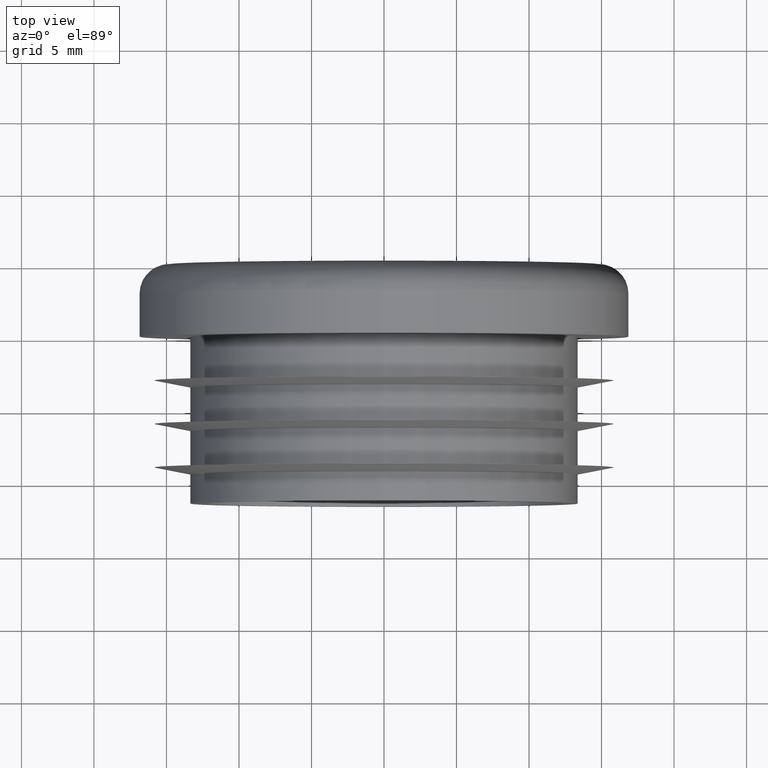
[diagram: clean part render]
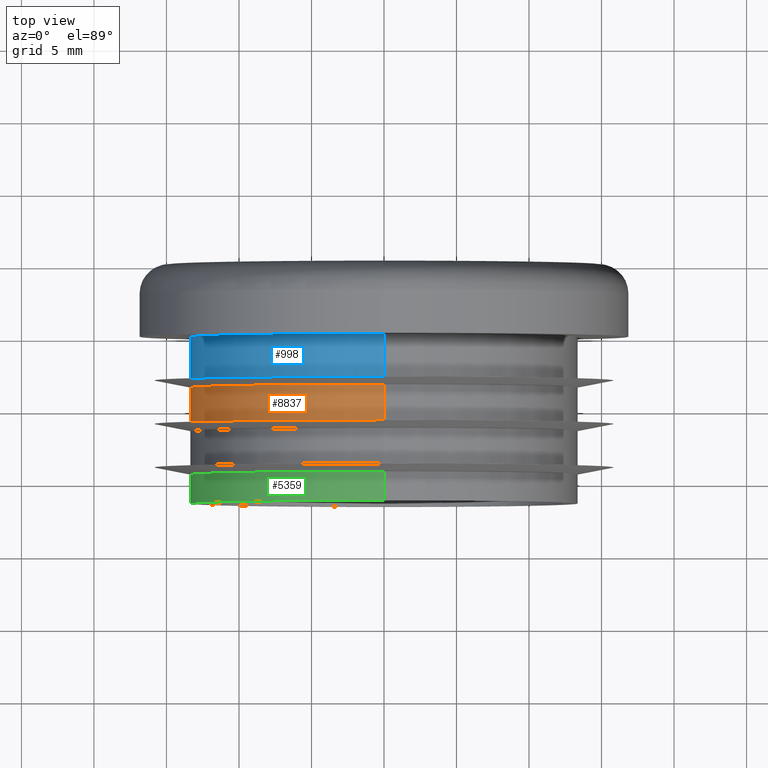
[diagram: same view with three faces highlighted in distinct colors, each labeled with its STEP entity id]
A machine part, top view with three faces highlighted in distinct colors.
Their STEP definitions:

[orange] entity #8837 — the highlighted cylindrical surface (partial cylindrical patch) has radius 13.35 mm, axis along (-0, 1, -0).
#106 = AXIS2_PLACEMENT_3D ( 'NONE', #3954, #6083, #7408 ) ;
#304 = VERTEX_POINT ( 'NONE', #6095 ) ;
#412 = ORIENTED_EDGE ( 'NONE', *, *, #2907, .F. ) ;
#1050 = VERTEX_POINT ( 'NONE', #1619 ) ;
#1102 = LINE ( 'NONE', #6921, #8354 ) ;
#1262 = EDGE_CURVE ( 'NONE', #1050, #8801, #7615, .T. ) ;
#1451 = EDGE_CURVE ( 'NONE', #1050, #304, #4980, .T. ) ;
#1561 = DIRECTION ( 'NONE',  ( -0.0000000000000000000, 1.000000000000000000, -0.0000000000000000000 ) ) ;
#1619 = CARTESIAN_POINT ( 'NONE',  ( 0.0000000000000000000, -5.999999999999999100, 13.35000000000000000 ) ) ;
#1625 = AXIS2_PLACEMENT_3D ( 'NONE', #5939, #1561, #6602 ) ;
#1961 = EDGE_LOOP ( 'NONE', ( #5173, #4888, #3386, #412 ) ) ;
#1980 = VECTOR ( 'NONE', #3500, 1000.000000000000000 ) ;
#2663 = DIRECTION ( 'NONE',  ( -0.0000000000000000000, 1.000000000000000000, -0.0000000000000000000 ) ) ;
#2907 = EDGE_CURVE ( 'NONE', #8285, #8801, #5611, .T. ) ;
#2946 = FACE_OUTER_BOUND ( 'NONE', #1961, .T. ) ;
#3386 = ORIENTED_EDGE ( 'NONE', *, *, #1262, .T. ) ;
#3500 = DIRECTION ( 'NONE',  ( -0.0000000000000000000, 1.000000000000000000, -0.0000000000000000000 ) ) ;
#3660 = AXIS2_PLACEMENT_3D ( 'NONE', #7491, #7448, #7439 ) ;
#3891 = CARTESIAN_POINT ( 'NONE',  ( 0.0000000000000000000, -3.500000000000000900, 13.35000000000000000 ) ) ;
#3954 = CARTESIAN_POINT ( 'NONE',  ( 0.0000000000000000000, -11.50000000000000000, 0.0000000000000000000 ) ) ;
#4063 = CARTESIAN_POINT ( 'NONE',  ( 0.0000000000000000000, -11.50000000000000000, 13.35000000000000000 ) ) ;
#4888 = ORIENTED_EDGE ( 'NONE', *, *, #1451, .F. ) ;
#4980 = CIRCLE ( 'NONE', #3660, 13.35000000000000000 ) ;
#5173 = ORIENTED_EDGE ( 'NONE', *, *, #8458, .F. ) ;
#5611 = CIRCLE ( 'NONE', #1625, 13.35000000000000000 ) ;
#5939 = CARTESIAN_POINT ( 'NONE',  ( 0.0000000000000000000, -3.500000000000000900, 0.0000000000000000000 ) ) ;
#6083 = DIRECTION ( 'NONE',  ( -0.0000000000000000000, 1.000000000000000000, -0.0000000000000000000 ) ) ;
#6095 = CARTESIAN_POINT ( 'NONE',  ( 1.634903476861716400E-015, -5.999999999999999100, -13.35000000000000000 ) ) ;
#6521 = CYLINDRICAL_SURFACE ( 'NONE', #106, 13.35000000000000000 ) ;
#6602 = DIRECTION ( 'NONE',  ( 0.0000000000000000000, 0.0000000000000000000, 1.000000000000000000 ) ) ;
#6921 = CARTESIAN_POINT ( 'NONE',  ( 1.634903476861716400E-015, -11.50000000000000000, -13.35000000000000000 ) ) ;
#7408 = DIRECTION ( 'NONE',  ( 0.0000000000000000000, 0.0000000000000000000, 1.000000000000000000 ) ) ;
#7439 = DIRECTION ( 'NONE',  ( 0.0000000000000000000, 0.0000000000000000000, -1.000000000000000000 ) ) ;
#7448 = DIRECTION ( 'NONE',  ( 0.0000000000000000000, -1.000000000000000000, 0.0000000000000000000 ) ) ;
#7491 = CARTESIAN_POINT ( 'NONE',  ( 0.0000000000000000000, -5.999999999999999100, 0.0000000000000000000 ) ) ;
#7615 = LINE ( 'NONE', #4063, #1980 ) ;
#8285 = VERTEX_POINT ( 'NONE', #9084 ) ;
#8354 = VECTOR ( 'NONE', #2663, 1000.000000000000000 ) ;
#8458 = EDGE_CURVE ( 'NONE', #304, #8285, #1102, .T. ) ;
#8801 = VERTEX_POINT ( 'NONE', #3891 ) ;
#8837 = ADVANCED_FACE ( 'NONE', ( #2946 ), #6521, .T. ) ;
#9084 = CARTESIAN_POINT ( 'NONE',  ( 1.634903476861716400E-015, -3.500000000000000900, -13.35000000000000000 ) ) ;

[blue] entity #998 — the highlighted cylindrical surface (partial cylindrical patch) has radius 13.35 mm, axis along (-0, 1, -0).
#130 = CARTESIAN_POINT ( 'NONE',  ( 0.0000000000000000000, 0.0000000000000000000, 13.35000000000000000 ) ) ;
#548 = CARTESIAN_POINT ( 'NONE',  ( 0.0000000000000000000, -2.999999999999999100, 13.35000000000000000 ) ) ;
#863 = EDGE_CURVE ( 'NONE', #8192, #6100, #4160, .T. ) ;
#998 = ADVANCED_FACE ( 'NONE', ( #6994 ), #8502, .T. ) ;
#1207 = CARTESIAN_POINT ( 'NONE',  ( 0.0000000000000000000, 0.0000000000000000000, 0.0000000000000000000 ) ) ;
#1235 = ORIENTED_EDGE ( 'NONE', *, *, #3605, .T. ) ;
#1731 = DIRECTION ( 'NONE',  ( 0.0000000000000000000, 0.0000000000000000000, 1.000000000000000000 ) ) ;
#1741 = CARTESIAN_POINT ( 'NONE',  ( 0.0000000000000000000, -11.50000000000000000, 0.0000000000000000000 ) ) ;
#1852 = DIRECTION ( 'NONE',  ( -0.0000000000000000000, 1.000000000000000000, -0.0000000000000000000 ) ) ;
#1950 = DIRECTION ( 'NONE',  ( 0.0000000000000000000, 0.0000000000000000000, 1.000000000000000000 ) ) ;
#1953 = VECTOR ( 'NONE', #2159, 1000.000000000000000 ) ;
#2142 = CARTESIAN_POINT ( 'NONE',  ( 1.634903476861716400E-015, 0.0000000000000000000, -13.35000000000000000 ) ) ;
#2159 = DIRECTION ( 'NONE',  ( -0.0000000000000000000, 1.000000000000000000, -0.0000000000000000000 ) ) ;
#2201 = CARTESIAN_POINT ( 'NONE',  ( 0.0000000000000000000, -11.50000000000000000, 13.35000000000000000 ) ) ;
#2291 = CARTESIAN_POINT ( 'NONE',  ( 1.634903476861716400E-015, -2.999999999999999100, -13.35000000000000000 ) ) ;
#2550 = ORIENTED_EDGE ( 'NONE', *, *, #4551, .F. ) ;
#3197 = CARTESIAN_POINT ( 'NONE',  ( 0.0000000000000000000, -2.999999999999999100, 0.0000000000000000000 ) ) ;
#3605 = EDGE_CURVE ( 'NONE', #6100, #6822, #6237, .T. ) ;
#3949 = DIRECTION ( 'NONE',  ( 0.0000000000000000000, 0.0000000000000000000, -1.000000000000000000 ) ) ;
#4160 = LINE ( 'NONE', #2201, #1953 ) ;
#4295 = CIRCLE ( 'NONE', #4575, 13.35000000000000000 ) ;
#4340 = ORIENTED_EDGE ( 'NONE', *, *, #8698, .F. ) ;
#4430 = CARTESIAN_POINT ( 'NONE',  ( 1.634903476861716400E-015, -11.50000000000000000, -13.35000000000000000 ) ) ;
#4551 = EDGE_CURVE ( 'NONE', #8192, #9040, #4295, .T. ) ;
#4575 = AXIS2_PLACEMENT_3D ( 'NONE', #3197, #8050, #3949 ) ;
#4947 = ORIENTED_EDGE ( 'NONE', *, *, #863, .T. ) ;
#5203 = DIRECTION ( 'NONE',  ( -0.0000000000000000000, 1.000000000000000000, -0.0000000000000000000 ) ) ;
#5851 = AXIS2_PLACEMENT_3D ( 'NONE', #1207, #6293, #1950 ) ;
#6019 = VECTOR ( 'NONE', #5203, 1000.000000000000000 ) ;
#6100 = VERTEX_POINT ( 'NONE', #130 ) ;
#6237 = CIRCLE ( 'NONE', #5851, 13.35000000000000000 ) ;
#6293 = DIRECTION ( 'NONE',  ( -0.0000000000000000000, -1.000000000000000000, -0.0000000000000000000 ) ) ;
#6687 = AXIS2_PLACEMENT_3D ( 'NONE', #1741, #1852, #1731 ) ;
#6770 = EDGE_LOOP ( 'NONE', ( #4340, #2550, #4947, #1235 ) ) ;
#6822 = VERTEX_POINT ( 'NONE', #2142 ) ;
#6994 = FACE_OUTER_BOUND ( 'NONE', #6770, .T. ) ;
#7554 = LINE ( 'NONE', #4430, #6019 ) ;
#8050 = DIRECTION ( 'NONE',  ( 0.0000000000000000000, -1.000000000000000000, 0.0000000000000000000 ) ) ;
#8192 = VERTEX_POINT ( 'NONE', #548 ) ;
#8502 = CYLINDRICAL_SURFACE ( 'NONE', #6687, 13.35000000000000000 ) ;
#8698 = EDGE_CURVE ( 'NONE', #9040, #6822, #7554, .T. ) ;
#9040 = VERTEX_POINT ( 'NONE', #2291 ) ;

[green] entity #5359 — the highlighted cylindrical surface (partial cylindrical patch) has radius 13.35 mm, axis along (-0, 1, -0).
#349 = VERTEX_POINT ( 'NONE', #5497 ) ;
#589 = LINE ( 'NONE', #7015, #7919 ) ;
#802 = CARTESIAN_POINT ( 'NONE',  ( 0.0000000000000000000, -9.500000000000001800, 13.35000000000000000 ) ) ;
#1155 = CARTESIAN_POINT ( 'NONE',  ( 0.0000000000000000000, -11.50000000000000000, 0.0000000000000000000 ) ) ;
#1273 = EDGE_LOOP ( 'NONE', ( #3581, #2094, #8457, #3190 ) ) ;
#1633 = EDGE_CURVE ( 'NONE', #349, #3309, #589, .T. ) ;
#2094 = ORIENTED_EDGE ( 'NONE', *, *, #3058, .F. ) ;
#2126 = CARTESIAN_POINT ( 'NONE',  ( 0.0000000000000000000, -11.50000000000000000, 0.0000000000000000000 ) ) ;
#2328 = FACE_OUTER_BOUND ( 'NONE', #1273, .T. ) ;
#2387 = CARTESIAN_POINT ( 'NONE',  ( 0.0000000000000000000, -9.500000000000001800, 0.0000000000000000000 ) ) ;
#2576 = DIRECTION ( 'NONE',  ( -0.0000000000000000000, 1.000000000000000000, -0.0000000000000000000 ) ) ;
#2611 = AXIS2_PLACEMENT_3D ( 'NONE', #2126, #7106, #2866 ) ;
#2866 = DIRECTION ( 'NONE',  ( 0.0000000000000000000, 0.0000000000000000000, -1.000000000000000000 ) ) ;
#3058 = EDGE_CURVE ( 'NONE', #7617, #349, #5169, .T. ) ;
#3124 = DIRECTION ( 'NONE',  ( 0.0000000000000000000, 0.0000000000000000000, 1.000000000000000000 ) ) ;
#3190 = ORIENTED_EDGE ( 'NONE', *, *, #3226, .F. ) ;
#3226 = EDGE_CURVE ( 'NONE', #3309, #6663, #4246, .T. ) ;
#3309 = VERTEX_POINT ( 'NONE', #4449 ) ;
#3581 = ORIENTED_EDGE ( 'NONE', *, *, #1633, .F. ) ;
#4246 = CIRCLE ( 'NONE', #4604, 13.35000000000000000 ) ;
#4449 = CARTESIAN_POINT ( 'NONE',  ( 1.787984326755135800E-015, -9.500000000000001800, -13.35000000000000000 ) ) ;
#4604 = AXIS2_PLACEMENT_3D ( 'NONE', #2387, #7342, #3124 ) ;
#5169 = CIRCLE ( 'NONE', #2611, 13.35000000000000000 ) ;
#5359 = ADVANCED_FACE ( 'NONE', ( #2328 ), #5971, .T. ) ;
#5497 = CARTESIAN_POINT ( 'NONE',  ( 1.634903476861716400E-015, -11.50000000000000000, -13.35000000000000000 ) ) ;
#5559 = DIRECTION ( 'NONE',  ( 0.0000000000000000000, 0.0000000000000000000, 1.000000000000000000 ) ) ;
#5856 = EDGE_CURVE ( 'NONE', #7617, #6663, #8091, .T. ) ;
#5971 = CYLINDRICAL_SURFACE ( 'NONE', #8890, 13.35000000000000000 ) ;
#6354 = CARTESIAN_POINT ( 'NONE',  ( 0.0000000000000000000, -11.50000000000000000, 13.35000000000000000 ) ) ;
#6663 = VERTEX_POINT ( 'NONE', #802 ) ;
#6747 = CARTESIAN_POINT ( 'NONE',  ( 0.0000000000000000000, -11.50000000000000000, 13.35000000000000000 ) ) ;
#6780 = DIRECTION ( 'NONE',  ( -0.0000000000000000000, 1.000000000000000000, -0.0000000000000000000 ) ) ;
#6915 = DIRECTION ( 'NONE',  ( -0.0000000000000000000, 1.000000000000000000, -0.0000000000000000000 ) ) ;
#7015 = CARTESIAN_POINT ( 'NONE',  ( 1.634903476861716400E-015, -11.50000000000000000, -13.35000000000000000 ) ) ;
#7106 = DIRECTION ( 'NONE',  ( 0.0000000000000000000, -1.000000000000000000, 0.0000000000000000000 ) ) ;
#7342 = DIRECTION ( 'NONE',  ( -0.0000000000000000000, 1.000000000000000000, -0.0000000000000000000 ) ) ;
#7617 = VERTEX_POINT ( 'NONE', #6354 ) ;
#7919 = VECTOR ( 'NONE', #6915, 1000.000000000000000 ) ;
#8091 = LINE ( 'NONE', #6747, #8480 ) ;
#8457 = ORIENTED_EDGE ( 'NONE', *, *, #5856, .T. ) ;
#8480 = VECTOR ( 'NONE', #6780, 1000.000000000000000 ) ;
#8890 = AXIS2_PLACEMENT_3D ( 'NONE', #1155, #2576, #5559 ) ;